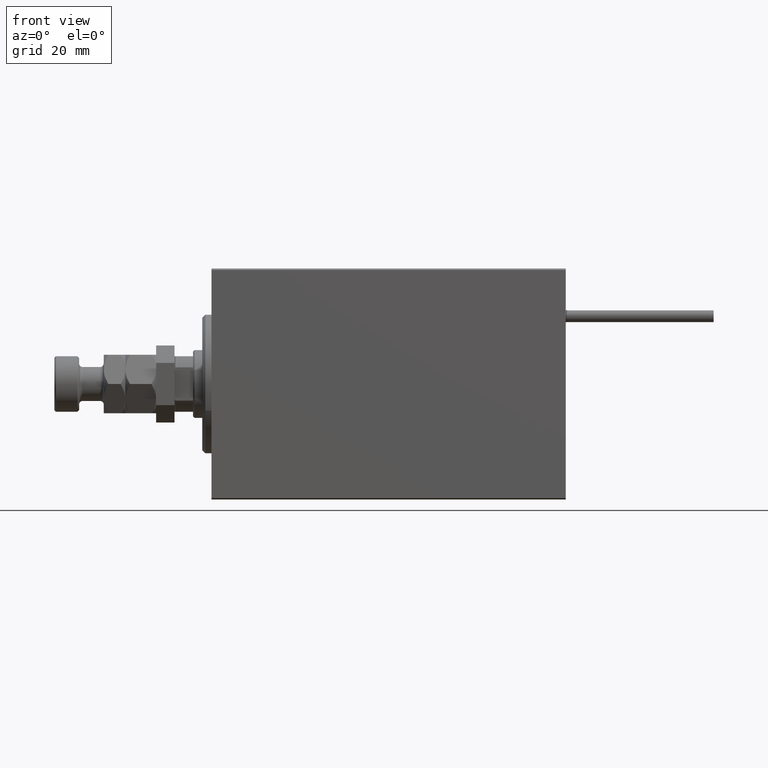
[diagram: clean part render]
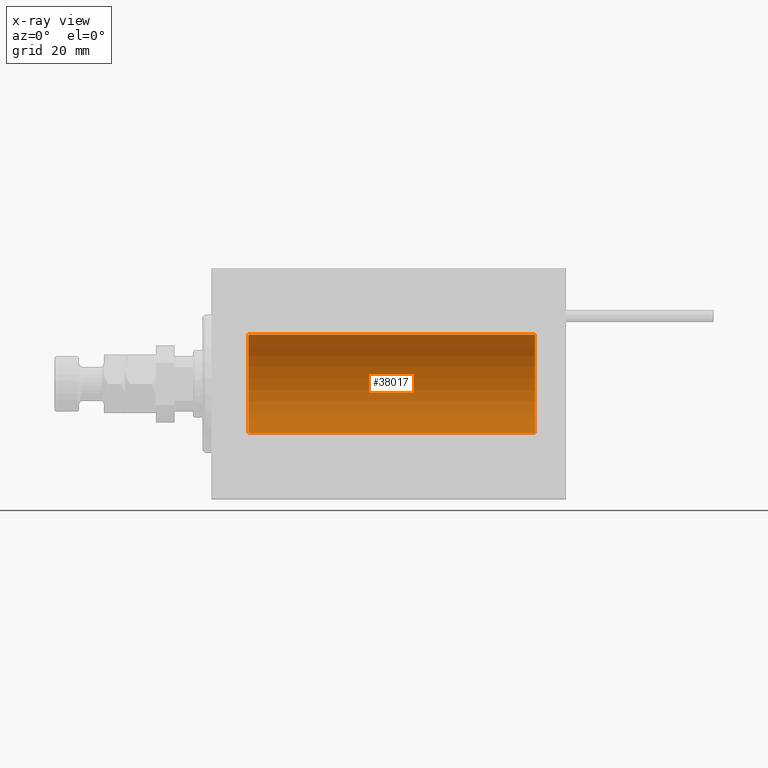
[diagram: x-ray — body ghosted, one internal face saturated and labeled with its STEP entity id]
A machine part, front view, then the same camera in x-ray: the body is ghosted and one INTERNAL B-rep face — a face not visible from any outside direction — is saturated and labeled: STEP entity #38017.
In plain terms, the highlighted cylindrical surface (partial cylindrical patch) has radius 16 mm, axis along (-1, -0, -0).
Its self-contained STEP definition (entity closure, byte-faithful):
#1802 = EDGE_CURVE ( 'NONE', #41280, #26636, #39435, .T. ) ;
#3646 = CIRCLE ( 'NONE', #5274, 16.00000000000000000 ) ;
#4099 = CARTESIAN_POINT ( 'NONE',  ( 105.0000000000000000, 1.959434878635765131E-15, -16.00000000000000000 ) ) ;
#5095 = ORIENTED_EDGE ( 'NONE', *, *, #35339, .F. ) ;
#5274 = AXIS2_PLACEMENT_3D ( 'NONE', #49680, #37170, #14206 ) ;
#5889 = VECTOR ( 'NONE', #43086, 1000.000000000000000 ) ;
#5933 = CYLINDRICAL_SURFACE ( 'NONE', #19541, 16.00000000000000000 ) ;
#9585 = DIRECTION ( 'NONE',  ( 0.000000000000000000, 0.000000000000000000, 1.000000000000000000 ) ) ;
#10286 = CARTESIAN_POINT ( 'NONE',  ( 105.0000000000000000, 0.000000000000000000, 16.00000000000000000 ) ) ;
#12664 = EDGE_CURVE ( 'NONE', #38298, #42047, #42565, .T. ) ;
#13285 = CIRCLE ( 'NONE', #44914, 16.00000000000000000 ) ;
#14206 = DIRECTION ( 'NONE',  ( 0.000000000000000000, 0.000000000000000000, 1.000000000000000000 ) ) ;
#15445 = CARTESIAN_POINT ( 'NONE',  ( 105.0000000000000000, 1.959434878635765131E-15, -16.00000000000000000 ) ) ;
#19541 = AXIS2_PLACEMENT_3D ( 'NONE', #33552, #28439, #9585 ) ;
#22391 = EDGE_CURVE ( 'NONE', #42047, #26636, #13285, .T. ) ;
#25398 = DIRECTION ( 'NONE',  ( -1.000000000000000000, 0.000000000000000000, 0.000000000000000000 ) ) ;
#26360 = ORIENTED_EDGE ( 'NONE', *, *, #1802, .F. ) ;
#26636 = VERTEX_POINT ( 'NONE', #28655 ) ;
#26678 = DIRECTION ( 'NONE',  ( -1.000000000000000000, -0.000000000000000000, -0.000000000000000000 ) ) ;
#28439 = DIRECTION ( 'NONE',  ( -1.000000000000000000, -0.000000000000000000, -0.000000000000000000 ) ) ;
#28655 = CARTESIAN_POINT ( 'NONE',  ( 11.99999999999999645, 1.959434878635765131E-15, -16.00000000000000000 ) ) ;
#30419 = EDGE_LOOP ( 'NONE', ( #26360, #5095, #35156, #42511 ) ) ;
#33198 = DIRECTION ( 'NONE',  ( 0.000000000000000000, 0.000000000000000000, 1.000000000000000000 ) ) ;
#33552 = CARTESIAN_POINT ( 'NONE',  ( 105.0000000000000000, 0.000000000000000000, 0.000000000000000000 ) ) ;
#33852 = VECTOR ( 'NONE', #26678, 1000.000000000000000 ) ;
#35156 = ORIENTED_EDGE ( 'NONE', *, *, #12664, .T. ) ;
#35339 = EDGE_CURVE ( 'NONE', #38298, #41280, #3646, .T. ) ;
#36362 = CARTESIAN_POINT ( 'NONE',  ( 11.99999999999999645, 0.000000000000000000, 0.000000000000000000 ) ) ;
#37170 = DIRECTION ( 'NONE',  ( -1.000000000000000000, 0.000000000000000000, 0.000000000000000000 ) ) ;
#38017 = ADVANCED_FACE ( 'NONE', ( #40430 ), #5933, .F. ) ;
#38136 = CARTESIAN_POINT ( 'NONE',  ( 105.0000000000000000, 0.000000000000000000, 16.00000000000000000 ) ) ;
#38298 = VERTEX_POINT ( 'NONE', #10286 ) ;
#39036 = CARTESIAN_POINT ( 'NONE',  ( 11.99999999999999645, 0.000000000000000000, 16.00000000000000000 ) ) ;
#39435 = LINE ( 'NONE', #15445, #5889 ) ;
#40430 = FACE_OUTER_BOUND ( 'NONE', #30419, .T. ) ;
#41280 = VERTEX_POINT ( 'NONE', #4099 ) ;
#42047 = VERTEX_POINT ( 'NONE', #39036 ) ;
#42511 = ORIENTED_EDGE ( 'NONE', *, *, #22391, .T. ) ;
#42565 = LINE ( 'NONE', #38136, #33852 ) ;
#43086 = DIRECTION ( 'NONE',  ( -1.000000000000000000, -0.000000000000000000, -0.000000000000000000 ) ) ;
#44914 = AXIS2_PLACEMENT_3D ( 'NONE', #36362, #25398, #33198 ) ;
#49680 = CARTESIAN_POINT ( 'NONE',  ( 105.0000000000000000, 0.000000000000000000, 0.000000000000000000 ) ) ;